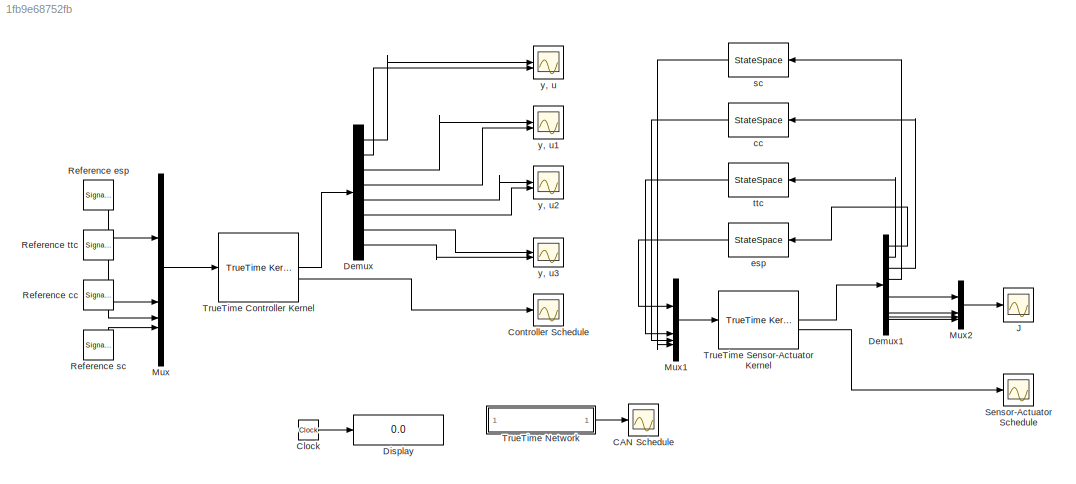
MODEL slx_1fb9e68752fb
KIND model
CONFIG AbsTol = auto
CONFIG EnableMultiTasking = off
CONFIG FixedStep = auto
CONFIG InitFcn = test
CONFIG MaxStep = auto
CONFIG MinStep = auto
CONFIG RelTol = 1e-6
CONFIG SampleTimeConstraint = Unconstrained
CONFIG SolverName = VariableStepAuto
CONFIG StartTime = 0.0
CONFIG StopTime = 10
BLOCK [Scope] CAN Schedule
  Floating = off
  NumInputPorts = 1
  ScopeSpecificationString = Simulink.scopes.TimeScopeBlockCfg('CurrentConfiguration', extmgr.ConfigurationSet(extmgr.Configuration('Core','General UI',true),extmgr.Configuration('Core','Source UI',true),extmgr.Configuration('Sources','WiredSimulink',true,'DataLogging',true,'DataLoggingVariableName','ScopeData1','DataLoggingSaveFormat','StructureWithTime'),extmgr.Configuration('Visuals','Time Domain',true,'SerializedDisplays'...<+1602ch>
BLOCK [Clock] Clock
BLOCK [Scope] Controller Schedule
  Floating = off
  NumInputPorts = 1
  ScopeSpecificationString = Simulink.scopes.TimeScopeBlockCfg('CurrentConfiguration', extmgr.ConfigurationSet(extmgr.Configuration('Core','General UI',true),extmgr.Configuration('Core','Source UI',true),extmgr.Configuration('Sources','WiredSimulink',true,'DataLogging',true,'DataLoggingVariableName','schedule','DataLoggingSaveFormat','StructureWithTime'),extmgr.Configuration('Visuals','Time Domain',true,'SerializedDisplays',{...<+1600ch>
BLOCK [Demux] Demux
  Outputs = 8
BLOCK [Demux] Demux1
  Outputs = 8
BLOCK [Display] Display
  Decimation = 1
BLOCK [Scope] J
  Floating = off
  NumInputPorts = 1
  ScopeSpecificationString = Simulink.scopes.TimeScopeBlockCfg('CurrentConfiguration', extmgr.ConfigurationSet(extmgr.Configuration('Core','General UI',true),extmgr.Configuration('Core','Source UI',true),extmgr.Configuration('Sources','WiredSimulink',true,'DataLoggingVariableName','ScopeData2','DataLogging',true,'DataLoggingSaveFormat','StructureWithTime'),extmgr.Configuration('Visuals','Time Domain',true,'SerializedDisplays'...<+2060ch>
BLOCK [Mux] Mux
  DisplayOption = bar
BLOCK [Mux] Mux1
  DisplayOption = bar
BLOCK [Mux] Mux2
  DisplayOption = bar
BLOCK [SignalGenerator] Reference cc
  Amplitude = -1
  Frequency = 0.02
  WaveForm = square
BLOCK [SignalGenerator] Reference esp
  Amplitude = -10
  Frequency = 0.02
  WaveForm = square
BLOCK [SignalGenerator] Reference sc
  Amplitude = -1
  Frequency = 0.02
  WaveForm = square
BLOCK [SignalGenerator] Reference ttc
  Amplitude = -1
  Frequency = 0.02
  WaveForm = square
BLOCK [Scope] Sensor-Actuator Schedule
  Floating = off
  NumInputPorts = 1
  ScopeSpecificationString = Simulink.scopes.TimeScopeBlockCfg('CurrentConfiguration', extmgr.ConfigurationSet(extmgr.Configuration('Core','General UI',true),extmgr.Configuration('Core','Source UI',true),extmgr.Configuration('Sources','WiredSimulink',true,'DataLogging',true,'DataLoggingVariableName','ScopeData3','DataLoggingSaveFormat','StructureWithTime'),extmgr.Configuration('Visuals','Time Domain',true,'SerializedDisplays'...<+1495ch>
BLOCK [Reference] TrueTime Controller Kernel  REF=truetime/TrueTime Kernel  (lib defined in slx_0362a698a4ec)
  SourceBlock = truetime/TrueTime Kernel
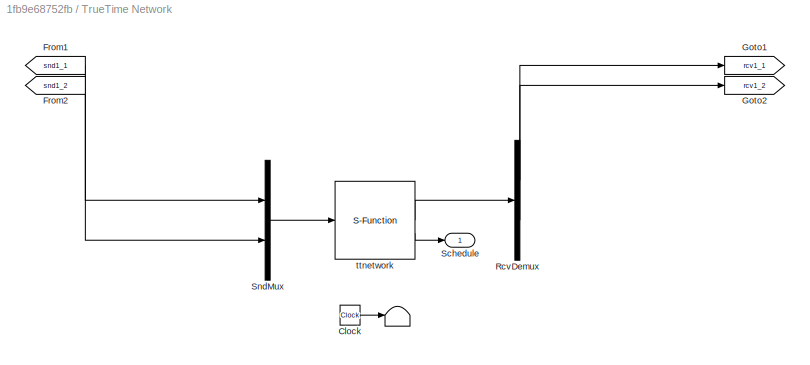
BLOCK [SubSystem] TrueTime Network
  AncestorBlock = truetime/TrueTime Network
BLOCK [Terminator] TrueTime Network/ 
BLOCK [Clock] TrueTime Network/Clock
BLOCK [From] TrueTime Network/From1
  GotoTag = snd1_1
  TagVisibility = global
BLOCK [From] TrueTime Network/From2
  GotoTag = snd1_2
  TagVisibility = global
BLOCK [Goto] TrueTime Network/Goto1
  GotoTag = rcv1_1
  TagVisibility = global
BLOCK [Goto] TrueTime Network/Goto2
  GotoTag = rcv1_2
  TagVisibility = global
BLOCK [Demux] TrueTime Network/RcvDemux
  DisplayOption = none
  Outputs = 2
BLOCK [Outport] TrueTime Network/Schedule
BLOCK [Mux] TrueTime Network/SndMux
  DisplayOption = bar
  Inputs = 2
BLOCK [S-Function] TrueTime Network/ttnetwork
  EnableBusSupport = off
  FunctionName = ttnetwork
  Parameters = nwtype,nwnbr,nnodes,rate,minsize,lossprob,bandwidths,slotsize,schedule,memsize,buftype,overflow,seed,dynSchedule,miniSlotSize,NIT,QSortMode,sync,irtSchedule,nrtLength,nodeGraph
  SFcnIsStateOwnerBlock = off
  SFunctionDeploymentMode = off
BLOCK [Reference] TrueTime Sensor-Actuator Kernel  REF=truetime/TrueTime Kernel  (lib defined in slx_0362a698a4ec)
  SourceBlock = truetime/TrueTime Kernel
BLOCK [StateSpace] cc
  A = A_cc
  B = B_cc
  C = C_cc1
  D = D_cc1
  InitialCondition = sharedmem.x0{3}
  NameLocation = top
BLOCK [StateSpace] esp
  A = A_esp
  B = B_esp
  C = C_esp1
  D = D_esp1
  InitialCondition = sharedmem.x0{1}
  NameLocation = top
BLOCK [StateSpace] sc
  A = A_sc
  B = B_sc
  C = C_sc1
  D = D_sc1
  InitialCondition = sharedmem.x0{4}
  NameLocation = top
BLOCK [StateSpace] ttc
  A = A_ttc
  B = B_ttc
  C = C_ttc1
  D = D_ttc1
  InitialCondition = sharedmem.x0{2}
  NameLocation = top
BLOCK [Scope] y, u
  Floating = off
  NumInputPorts = 2
  ScopeSpecificationString = Simulink.scopes.TimeScopeBlockCfg('CurrentConfiguration', extmgr.ConfigurationSet(extmgr.Configuration('Core','General UI',true),extmgr.Configuration('Core','Source UI',true),extmgr.Configuration('Sources','WiredSimulink',true,'DataLoggingVariableName','JP','DataLogging',true,'DataLoggingSaveFormat','StructureWithTime'),extmgr.Configuration('Visuals','Time Domain',true,'SerializedDisplays',{struct...<+2071ch>
BLOCK [Scope] y, u1
  Floating = off
  NumInputPorts = 2
  ScopeSpecificationString = Simulink.scopes.TimeScopeBlockCfg('CurrentConfiguration', extmgr.ConfigurationSet(extmgr.Configuration('Core','General UI',true),extmgr.Configuration('Core','Source UI',true),extmgr.Configuration('Sources','WiredSimulink',true,'DataLoggingVariableName','ScopeData1','DataLogging',true,'DataLoggingSaveFormat','StructureWithTime'),extmgr.Configuration('Visuals','Time Domain',true,'SerializedDisplays'...<+2079ch>
BLOCK [Scope] y, u2
  Floating = off
  NumInputPorts = 2
  ScopeSpecificationString = Simulink.scopes.TimeScopeBlockCfg('CurrentConfiguration', extmgr.ConfigurationSet(extmgr.Configuration('Core','General UI',true),extmgr.Configuration('Core','Source UI',true),extmgr.Configuration('Sources','WiredSimulink',true,'DataLoggingVariableName','ScopeData2','DataLogging',true,'DataLoggingSaveFormat','StructureWithTime'),extmgr.Configuration('Visuals','Time Domain',true,'SerializedDisplays'...<+2079ch>
BLOCK [Scope] y, u3
  Floating = off
  NumInputPorts = 2
  ScopeSpecificationString = Simulink.scopes.TimeScopeBlockCfg('CurrentConfiguration', extmgr.ConfigurationSet(extmgr.Configuration('Core','General UI',true),extmgr.Configuration('Core','Source UI',true),extmgr.Configuration('Sources','WiredSimulink',true,'DataLoggingVariableName','ScopeData3','DataLogging',true,'DataLoggingSaveFormat','StructureWithTime'),extmgr.Configuration('Visuals','Time Domain',true,'SerializedDisplays'...<+2079ch>
LINE Clock:1 -> Display:1
LINE Demux1:1 -> esp:1
LINE Demux1:2 -> ttc:1
LINE Demux1:3 -> cc:1
LINE Demux1:4 -> sc:1
LINE Demux1:5 -> Mux2:1
LINE Demux1:6 -> Mux2:2
LINE Demux1:7 -> Mux2:3
LINE Demux1:8 -> Mux2:4
LINE Demux:1 -> y, u:1
LINE Demux:2 -> y, u:2
LINE Demux:3 -> y, u1:1
LINE Demux:4 -> y, u1:2
LINE Demux:5 -> y, u2:1
LINE Demux:6 -> y, u2:2
LINE Demux:7 -> y, u3:1
LINE Demux:8 -> y, u3:2
LINE Mux1:1 -> TrueTime Sensor-Actuator Kernel:1
LINE Mux2:1 -> J:1
LINE Mux:1 -> TrueTime Controller Kernel:1
LINE Reference cc:1 -> Mux:3
LINE Reference esp:1 -> Mux:1
LINE Reference sc:1 -> Mux:4
LINE Reference ttc:1 -> Mux:2
LINE TrueTime Controller Kernel:1 -> Demux:1
LINE TrueTime Controller Kernel:2 -> Controller Schedule:1
LINE TrueTime Network:1 -> CAN Schedule:1
LINE TrueTime Sensor-Actuator Kernel:1 -> Demux1:1
LINE TrueTime Sensor-Actuator Kernel:2 -> Sensor-Actuator Schedule:1
LINE cc:1 -> Mux1:3
LINE esp:1 -> Mux1:1
LINE sc:1 -> Mux1:4
LINE ttc:1 -> Mux1:2
